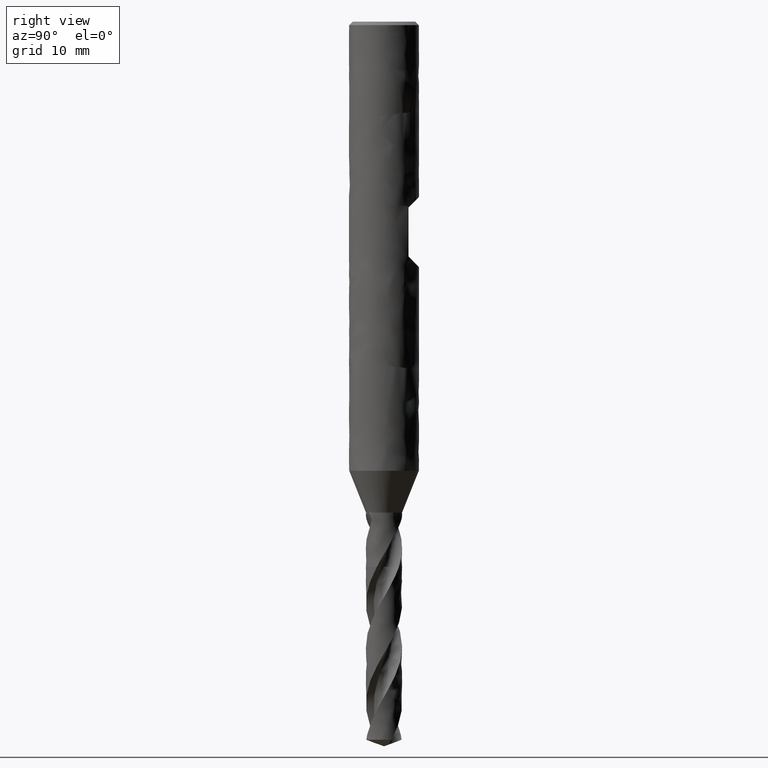
[diagram: clean part render]
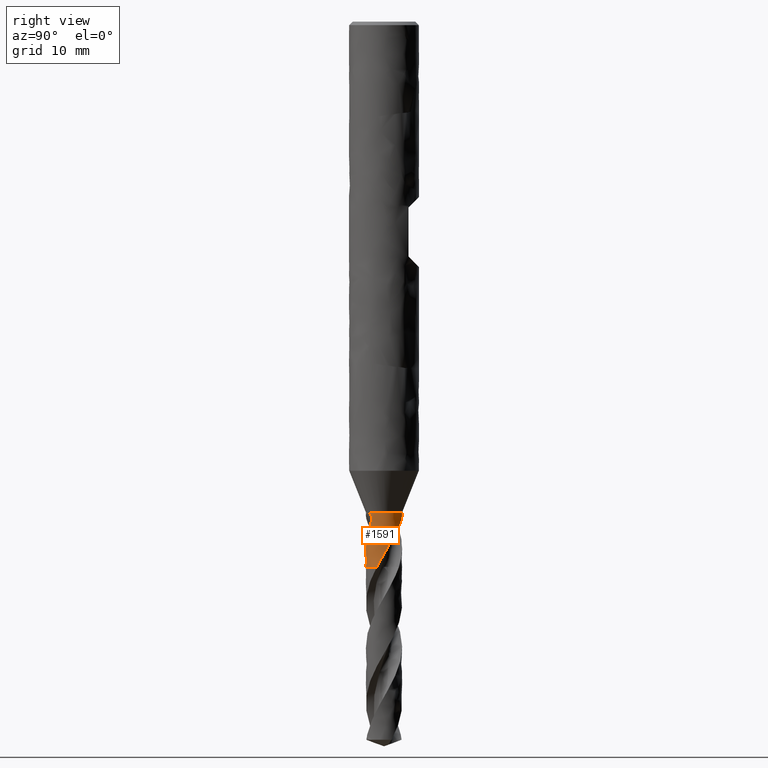
[diagram: same view with one face highlighted and labeled with its STEP entity id]
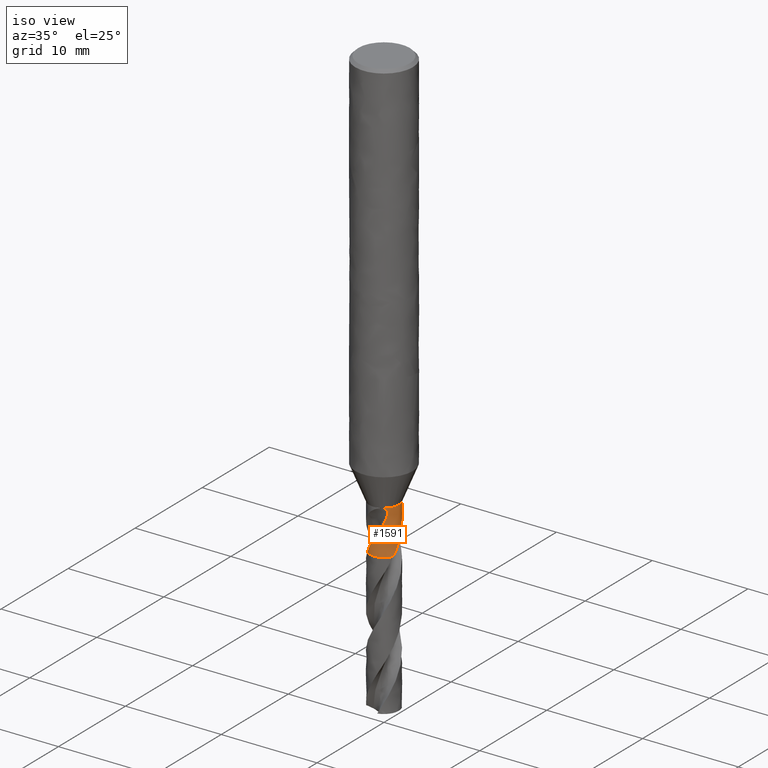
[diagram: same view with one face highlighted and labeled with its STEP entity id]
A machine part, right view. The second image highlights one B-rep face of the part: STEP entity #1591.
A second angle (iso view) of the same face is appended — the face is thin or edge-on in the first view.
In plain terms, the highlighted face is a freeform B-spline surface patch.
Its self-contained STEP definition (entity closure, byte-faithful):
#234 = VERTEX_POINT('', #235);
#235 = CARTESIAN_POINT('', (0.828880409114039, -1.30975465923467, -42.));
#248 = EDGE_CURVE('', #249, #234, #251, .T.);
#249 = VERTEX_POINT('', #250);
#250 = CARTESIAN_POINT('', (-0.627881422364551, 1.41713264003391, -42.));
#251 = CIRCLE('', #252, 1.55);
#252 = AXIS2_PLACEMENT_3D('', #253, #254, #255);
#253 = CARTESIAN_POINT('', (1.57474777179495E-31, 2.57175827820944E-15, -42.));
#254 = DIRECTION('', (3.74939945665464E-33, 6.12323399573677E-17, -1.));
#255 = DIRECTION('', (-1., 6.12323399573677E-17, 0.));
#663 = VERTEX_POINT('', #664);
#664 = CARTESIAN_POINT('', (1.42358137269787, -0.613119951810125, -46.65));
#673 = VERTEX_POINT('', #674);
#674 = CARTESIAN_POINT('', (0.688109863352139, 1.3888861781865, -42.9118066929105));
#694 = EDGE_CURVE('', #673, #663, #695, .T.);
#695 = B_SPLINE_CURVE_WITH_KNOTS('', 3, (#696, #697, #698, #699, #700, #701, #702, #703, #704, #705, #706, #707, #708, #709, #710, #711, #712, #713, #714, #715, #716, #717, #718, #719, #720, #721, #722, #723, #724, #725, #726, #727, #728, #729, #730, #731, #732, #733, #734, #735, #736, #737, #738, #739, #740, #741, #742, #743, #744, #745, #746, #747, #748, #749, #750, #751, #752, #753, #754, #755, #756, #757, #758, #759, #760, #761, #762, #763, #764, #765, #766, #767, #768, #769, #770, #771, #772, #773, #774, #775, #776, #777, #778, #779, #780, #781, #782, #783, #784, #785, #786, #787, #788, #789), .UNSPECIFIED., .F., .U., (4, 3, 3, 3, 3, 3, 3, 3, 3, 3, 3, 3, 3, 3, 3, 3, 3, 3, 3, 3, 3, 3, 3, 3, 3, 3, 3, 3, 3, 3, 3, 4), (0., 0.196307710938132, 0.392650529387996, 0.523731264748118, 0.654831555741321, 0.785953488166767, 0.917100515647358, 1.04827268029786, 1.17947527470515, 1.31071016461585, 1.44197240478924, 1.6388612717256, 1.72640256478545, 1.92344223032239, 2.01101714690096, 2.09858427305577, 2.18612234798457, 2.2736513195436, 2.36119224107981, 2.55806800019282, 2.68932176729786, 2.98419434913128, 3.11542578257224, 3.15433742898193, 3.193269035227, 3.32476015690542, 3.4562462548904, 3.65356726416794, 3.85085193143608, 4.04811085533864, 4.34408625653731, 4.42457904541132), .UNSPECIFIED.);
#696 = CARTESIAN_POINT('', (0.688109863352139, 1.3888861781865, -42.9118066929105));
#697 = CARTESIAN_POINT('', (0.725914878409177, 1.37015605893448, -42.961824899149));
#698 = CARTESIAN_POINT('', (0.7626199701549, 1.35004646359854, -43.0121879527074));
#699 = CARTESIAN_POINT('', (0.798117153549895, 1.32872457989217, -43.0628553458928));
#700 = CARTESIAN_POINT('', (0.833620685232364, 1.30739888299742, -43.1135318003938));
#701 = CARTESIAN_POINT('', (0.867937485532786, 1.28484771525259, -43.1645517061885));
#702 = CARTESIAN_POINT('', (0.9009816137607, 1.26124229696965, -43.2158767387565));
#703 = CARTESIAN_POINT('', (0.923042255762512, 1.24548304684052, -43.2501419238267));
#704 = CARTESIAN_POINT('', (0.944545249827618, 1.22924761472716, -43.2845549007541));
#705 = CARTESIAN_POINT('', (0.965470177926544, 1.21258704245695, -43.3191048864813));
#706 = CARTESIAN_POINT('', (0.986398227767311, 1.19592398463433, -43.3536600266412));
#707 = CARTESIAN_POINT('', (1.00675388992414, 1.17883095094532, -43.3883618632151));
#708 = CARTESIAN_POINT('', (1.02651811307358, 1.16136151285113, -43.4232028260833));
#709 = CARTESIAN_POINT('', (1.04628559880996, 1.14388919098255, -43.4580495403372));
#710 = CARTESIAN_POINT('', (1.06546709972157, 1.12603548871378, -43.4930443911303));
#711 = CARTESIAN_POINT('', (1.08405125760561, 1.10785056342618, -43.5281765215259));
#712 = CARTESIAN_POINT('', (1.10263897225897, 1.08966215777725, -43.5633153757604));
#713 = CARTESIAN_POINT('', (1.12063388384156, 1.07113769837624, -43.5986004362875));
#714 = CARTESIAN_POINT('', (1.13802635218483, 1.05232885626733, -43.634023448814));
#715 = CARTESIAN_POINT('', (1.15542215417157, 1.03351640903622, -43.6694532509284));
#716 = CARTESIAN_POINT('', (1.17221888215611, 1.01441558894512, -43.7050302967342));
#717 = CARTESIAN_POINT('', (1.1884103593105, 0.995078297363333, -43.7407472142565));
#718 = CARTESIAN_POINT('', (1.20460559261784, 0.97573651985207, -43.7764724175086));
#719 = CARTESIAN_POINT('', (1.22020008503502, 0.956152585715105, -43.8123446809472));
#720 = CARTESIAN_POINT('', (1.23519393300342, 0.936373829125725, -43.8483539213926));
#721 = CARTESIAN_POINT('', (1.25019147170576, 0.916590203997702, -43.8843720255084));
#722 = CARTESIAN_POINT('', (1.26459139481753, 0.896607197413098, -43.9205349635415));
#723 = CARTESIAN_POINT('', (1.27839461590825, 0.876474304253611, -43.9568359210355));
#724 = CARTESIAN_POINT('', (1.29220071368614, 0.856337215259334, -43.9931444439012));
#725 = CARTESIAN_POINT('', (1.30541224247744, 0.836046696868505, -44.0295991698362));
#726 = CARTESIAN_POINT('', (1.31803295197253, 0.815652583833749, -44.0661944887591));
#727 = CARTESIAN_POINT('', (1.33696358418738, 0.785062112405858, -44.1210862144252));
#728 = CARTESIAN_POINT('', (1.35457118549308, 0.754227513388256, -44.176314292574));
#729 = CARTESIAN_POINT('', (1.37088550337813, 0.723306944960235, -44.2318571481439));
#730 = CARTESIAN_POINT('', (1.37813922221591, 0.709558953088203, -44.2565527719874));
#731 = CARTESIAN_POINT('', (1.3851383005562, 0.69579245932408, -44.2813142362066));
#732 = CARTESIAN_POINT('', (1.39188726365057, 0.682018947894663, -44.3061384065767));
#733 = CARTESIAN_POINT('', (1.40707796262651, 0.651017257258608, -44.362013137872));
#734 = CARTESIAN_POINT('', (1.42100982403972, 0.619960949035784, -44.4182138075553));
#735 = CARTESIAN_POINT('', (1.43372984388197, 0.588998077044549, -44.4747235359944));
#736 = CARTESIAN_POINT('', (1.43938329783769, 0.575236528453426, -44.4998394675529));
#737 = CARTESIAN_POINT('', (1.44479763687934, 0.561493029343534, -44.5250203472092));
#738 = CARTESIAN_POINT('', (1.44997525077408, 0.547788072289502, -44.5502694708734));
#739 = CARTESIAN_POINT('', (1.45515240408253, 0.534084334390762, -44.575516348445));
#740 = CARTESIAN_POINT('', (1.46009221637526, 0.520421291558529, -44.6008351490694));
#741 = CARTESIAN_POINT('', (1.46480333290626, 0.506804889387146, -44.6262201672658));
#742 = CARTESIAN_POINT('', (1.4695128864796, 0.493193004586543, -44.6515967637412));
#743 = CARTESIAN_POINT('', (1.47399443441375, 0.479626840829052, -44.6770411520179));
#744 = CARTESIAN_POINT('', (1.4782629171662, 0.466088776663081, -44.7025349909793));
#745 = CARTESIAN_POINT('', (1.48253095602521, 0.452552120364533, -44.7280261787533));
#746 = CARTESIAN_POINT('', (1.48658643339481, 0.439042810316026, -44.753568211496));
#747 = CARTESIAN_POINT('', (1.49044756414112, 0.425518576029078, -44.7791307745499));
#748 = CARTESIAN_POINT('', (1.49430922203202, 0.411992495333013, -44.8046968275575));
#749 = CARTESIAN_POINT('', (1.49797716629944, 0.398449700461791, -44.8302839994479));
#750 = CARTESIAN_POINT('', (1.5014685503852, 0.384827483691276, -44.8558522566131));
#751 = CARTESIAN_POINT('', (1.50932052269916, 0.354191705355451, -44.9133541648667));
#752 = CARTESIAN_POINT('', (1.51626708216551, 0.323184328750323, -44.9707901707672));
#753 = CARTESIAN_POINT('', (1.52226406194159, 0.291911160665524, -45.028172215239));
#754 = CARTESIAN_POINT('', (1.52626214779233, 0.271061863936804, -45.0664278620237));
#755 = CARTESIAN_POINT('', (1.52983946782491, 0.250090630312868, -45.1046635803808));
#756 = CARTESIAN_POINT('', (1.53298806248788, 0.22901441061571, -45.1428742031237));
#757 = CARTESIAN_POINT('', (1.54006164412973, 0.181664917687133, -45.2287175677004));
#758 = CARTESIAN_POINT('', (1.54497357003309, 0.133759140346707, -45.3144623053737));
#759 = CARTESIAN_POINT('', (1.54763936477845, 0.0855125522270569, -45.4000558422376));
#760 = CARTESIAN_POINT('', (1.54882576218278, 0.0640406714634729, -45.4381487787395));
#761 = CARTESIAN_POINT('', (1.54956770045093, 0.0424980725993128, -45.4762183951329));
#762 = CARTESIAN_POINT('', (1.54985895686775, 0.0209096584576321, -45.5142627975886));
#763 = CARTESIAN_POINT('', (1.54994531778303, 0.0145084425629281, -45.5255434054232));
#764 = CARTESIAN_POINT('', (1.54999206876865, 0.00810308191162524, -45.5368220352718));
#765 = CARTESIAN_POINT('', (1.54999907403801, 0.00169424948084738, -45.5480986462014));
#766 = CARTESIAN_POINT('', (1.55000608290074, -0.00471787037804203, -45.5593810414994));
#767 = CARTESIAN_POINT('', (1.54997330531164, -0.011133526359033, -45.5706615229412));
#768 = CARTESIAN_POINT('', (1.54990061808078, -0.0175520389927566, -45.5819400505936));
#769 = CARTESIAN_POINT('', (1.5496551176651, -0.0392305030253665, -45.6200331681126));
#770 = CARTESIAN_POINT('', (1.54895418078763, -0.0609431089587205, -45.6581066904523));
#771 = CARTESIAN_POINT('', (1.54779416016179, -0.0826634004204427, -45.6961590880975));
#772 = CARTESIAN_POINT('', (1.54663418385519, -0.104382862046017, -45.7342100319291));
#773 = CARTESIAN_POINT('', (1.54501498030839, -0.126113158253275, -45.7722435914613));
#774 = CARTESIAN_POINT('', (1.5429346012644, -0.147826980693866, -45.810258546714));
#775 = CARTESIAN_POINT('', (1.53981257924891, -0.180412884640459, -45.8673075386079));
#776 = CARTESIAN_POINT('', (1.5356491527488, -0.212971693211585, -45.9243244761203));
#777 = CARTESIAN_POINT('', (1.5304586350026, -0.245349478389478, -45.9813412559846));
#778 = CARTESIAN_POINT('', (1.52526907323086, -0.277721300321097, -46.0383475346642));
#779 = CARTESIAN_POINT('', (1.51905591903555, -0.309905096839805, -46.095376839728));
#780 = CARTESIAN_POINT('', (1.51183485834946, -0.341841134270699, -46.1524077787983));
#781 = CARTESIAN_POINT('', (1.50461473992821, -0.373773004418356, -46.2094312759911));
#782 = CARTESIAN_POINT('', (1.49638485266574, -0.405467684235788, -46.2664691646919));
#783 = CARTESIAN_POINT('', (1.48715790855641, -0.436876819044156, -46.3234935754845));
#784 = CARTESIAN_POINT('', (1.47331342217997, -0.484004376532009, -46.4090553464225));
#785 = CARTESIAN_POINT('', (1.45721693653461, -0.53050173451423, -46.4946316660526));
#786 = CARTESIAN_POINT('', (1.43895794688042, -0.576107652361715, -46.5801898490508));
#787 = CARTESIAN_POINT('', (1.43399227408012, -0.58851053281001, -46.6034580555728));
#788 = CARTESIAN_POINT('', (1.42886553878241, -0.600850834835569, -46.6267310261941));
#789 = CARTESIAN_POINT('', (1.42358137269787, -0.613119951810125, -46.65));
#973 = EDGE_CURVE('', #673, #249, #974, .T.);
#974 = B_SPLINE_CURVE_WITH_KNOTS('', 3, (#975, #976, #977, #978, #979, #980, #981, #982, #983, #984, #985, #986, #987, #988, #989, #990, #991, #992, #993, #994, #995, #996, #997, #998, #999, #1000, #1001, #1002, #1003, #1004, #1005, #1006, #1007, #1008, #1009, #1010, #1011, #1012, #1013, #1014, #1015, #1016, #1017), .UNSPECIFIED., .F., .U., (4, 3, 3, 3, 3, 3, 3, 3, 3, 3, 3, 3, 3, 3, 4), (0., 0.199512024103179, 0.399145997554944, 0.598825837173971, 0.798452214318455, 0.930861007897549, 0.956845436201182, 0.974175246523715, 1.10783884449987, 1.24150972349648, 1.37515131563216, 1.4636764541842, 1.55214562278959, 1.64052794465364, 1.66696989648434), .UNSPECIFIED.);
#975 = CARTESIAN_POINT('', (0.688109863352139, 1.3888861781865, -42.9118066929105));
#976 = CARTESIAN_POINT('', (0.649687760423854, 1.40792202749577, -42.8609720439761));
#977 = CARTESIAN_POINT('', (0.609166384223053, 1.42600873895645, -42.8112947280029));
#978 = CARTESIAN_POINT('', (0.566669538144555, 1.44270081255229, -42.7629400401527));
#979 = CARTESIAN_POINT('', (0.52414671637502, 1.45940308897932, -42.7145557960754));
#980 = CARTESIAN_POINT('', (0.479575220984548, 1.47473600166537, -42.6674089881736));
#981 = CARTESIAN_POINT('', (0.433142044427215, 1.48824996870466, -42.6216976734509));
#982 = CARTESIAN_POINT('', (0.386698199786661, 1.5017670405956, -42.5759758564938));
#983 = CARTESIAN_POINT('', (0.338295733037174, 1.51349143742434, -42.5316001825323));
#984 = CARTESIAN_POINT('', (0.288191434533436, 1.52297265144899, -42.4888229416742));
#985 = CARTESIAN_POINT('', (0.238100551003329, 1.53245132696418, -42.4460571540362));
#986 = CARTESIAN_POINT('', (0.186191680448451, 1.53970938436536, -42.4047818298425));
#987 = CARTESIAN_POINT('', (0.132794609387921, 1.54430100424675, -42.3653416938936));
#988 = CARTESIAN_POINT('', (0.0973772368897723, 1.5473465479157, -42.3391817199748));
#989 = CARTESIAN_POINT('', (0.0612518946608237, 1.54922454214678, -42.3137901101189));
#990 = CARTESIAN_POINT('', (0.024534886059553, 1.54980580698553, -42.2893047418982));
#991 = CARTESIAN_POINT('', (0.0173293942509318, 1.54991987670944, -42.2844996358489));
#992 = CARTESIAN_POINT('', (0.0101000028696625, 1.54998406000565, -42.2797287298267));
#993 = CARTESIAN_POINT('', (0.00284768241107897, 1.54999738409615, -42.2749932426621));
#994 = CARTESIAN_POINT('', (-0.00198911201352287, 1.55000627033979, -42.2718350013727));
#995 = CARTESIAN_POINT('', (-0.00683626033863964, 1.54999253525196, -42.2686924134842));
#996 = CARTESIAN_POINT('', (-0.0116934662623758, 1.54995589061327, -42.2655658570562));
#997 = CARTESIAN_POINT('', (-0.0491567510759168, 1.54967325311391, -42.2414509490642));
#998 = CARTESIAN_POINT('', (-0.0872563126577124, 1.54802615196217, -42.2182632633681));
#999 = CARTESIAN_POINT('', (-0.125840676796575, 1.54488320725658, -42.1962070823066));
#1000 = CARTESIAN_POINT('', (-0.164427142730904, 1.54174009134623, -42.1741496997849));
#1001 = CARTESIAN_POINT('', (-0.203572923630975, 1.537094352888, -42.1531803093576));
#1002 = CARTESIAN_POINT('', (-0.243090090655497, 1.53081912969009, -42.1335757757286));
#1003 = CARTESIAN_POINT('', (-0.282598599595449, 1.52454528137345, -42.1139755373901));
#1004 = CARTESIAN_POINT('', (-0.322573769802558, 1.5166263862717, -42.0956904921732));
#1005 = CARTESIAN_POINT('', (-0.362770713871861, 1.5069497035923, -42.0791067563427));
#1006 = CARTESIAN_POINT('', (-0.389397454740759, 1.50053980034863, -42.0681215721));
#1007 = CARTESIAN_POINT('', (-0.416164007889958, 1.49334871956095, -42.0578666085117));
#1008 = CARTESIAN_POINT('', (-0.442976999788764, 1.48535227392634, -42.048492986779));
#1009 = CARTESIAN_POINT('', (-0.469773039195309, 1.47736088403796, -42.0391252915111));
#1010 = CARTESIAN_POINT('', (-0.496660495276984, 1.46855117807641, -42.0306217144598));
#1011 = CARTESIAN_POINT('', (-0.523518029730813, 1.45891359324217, -42.0231763429793));
#1012 = CARTESIAN_POINT('', (-0.550349199187838, 1.44928546925006, -42.0157382803303));
#1013 = CARTESIAN_POINT('', (-0.577208016946002, 1.43880948994966, -42.0093401567046));
#1014 = CARTESIAN_POINT('', (-0.603929551241862, 1.4275044998657, -42.0042319274531));
#1015 = CARTESIAN_POINT('', (-0.611924017870382, 1.42412230762474, -42.0027036631016));
#1016 = CARTESIAN_POINT('', (-0.619909811836529, 1.42066457911673, -42.0012904049218));
#1017 = CARTESIAN_POINT('', (-0.627881422364551, 1.41713264003391, -42.));
#1170 = EDGE_CURVE('', #1171, #1173, #1175, .T.);
#1171 = VERTEX_POINT('', #1172);
#1172 = CARTESIAN_POINT('', (0.388448596517922, -1.50053580026044, -44.3085021906909));
#1173 = VERTEX_POINT('', #1174);
#1174 = CARTESIAN_POINT('', (-0.0220287822873654, -1.54984345427238, -45.0346399438167));
#1175 = B_SPLINE_CURVE_WITH_KNOTS('', 3, (#1176, #1177, #1178, #1179, #1180, #1181, #1182, #1183, #1184, #1185, #1186, #1187, #1188, #1189, #1190, #1191, #1192, #1193, #1194, #1195, #1196, #1197, #1198, #1199, #1200, #1201, #1202, #1203, #1204, #1205, #1206), .UNSPECIFIED., .F., .U., (4, 3, 3, 3, 3, 3, 3, 3, 3, 3, 4), (0., 0.131264561227884, 0.262585397836051, 0.320959091994737, 0.408497116577098, 0.496014958535333, 0.583532936850336, 0.64189940386984, 0.773166079629821, 0.812085985535779, 0.836531589989056), .UNSPECIFIED.);
#1176 = CARTESIAN_POINT('', (0.388448596517922, -1.50053580026044, -44.3085021906909));
#1177 = CARTESIAN_POINT('', (0.365245776018878, -1.50654239007759, -44.3451087095871));
#1178 = CARTESIAN_POINT('', (0.342269985999335, -1.5119154075652, -44.3819700204049));
#1179 = CARTESIAN_POINT('', (0.319595882078315, -1.51669326897673, -44.419085304019));
#1180 = CARTESIAN_POINT('', (0.296912057378063, -1.52147317873982, -44.4562164995949));
#1181 = CARTESIAN_POINT('', (0.274523294112293, -1.52565848158655, -44.4936117303057));
#1182 = CARTESIAN_POINT('', (0.252531175537293, -1.52929003311441, -44.5312851649694));
#1183 = CARTESIAN_POINT('', (0.242755413847402, -1.53090430152516, -44.5480314606051));
#1184 = CARTESIAN_POINT('', (0.233059112696367, -1.53240914489766, -44.5648353275673));
#1185 = CARTESIAN_POINT('', (0.223447825033429, -1.53380933283372, -44.5816957077481));
#1186 = CARTESIAN_POINT('', (0.209034600929104, -1.53590907463923, -44.6069797744156));
#1187 = CARTESIAN_POINT('', (0.194808695590573, -1.53777444007374, -44.6323916546964));
#1188 = CARTESIAN_POINT('', (0.180740003990574, -1.53942620835086, -44.6579019967208));
#1189 = CARTESIAN_POINT('', (0.166674556045158, -1.54107759579899, -44.6834064571222));
#1190 = CARTESIAN_POINT('', (0.152765004717375, -1.54251587157647, -44.7090116501387));
#1191 = CARTESIAN_POINT('', (0.138951430237892, -1.54375921051012, -44.7346764251265));
#1192 = CARTESIAN_POINT('', (0.125137834236232, -1.54500255138096, -44.7603412401012));
#1193 = CARTESIAN_POINT('', (0.111419137017613, -1.54605127648669, -44.7860671434218));
#1194 = CARTESIAN_POINT('', (0.0977069707812185, -1.54691736943534, -44.8118017589973));
#1195 = CARTESIAN_POINT('', (0.0885622131689953, -1.54749497402009, -44.8289643879812));
#1196 = CARTESIAN_POINT('', (0.0794170980341032, -1.54799133352538, -44.8461297619382));
#1197 = CARTESIAN_POINT('', (0.0702480691626434, -1.54840731358997, -44.8632841177297));
#1198 = CARTESIAN_POINT('', (0.0496268460294764, -1.54934285625769, -44.9018644083408));
#1199 = CARTESIAN_POINT('', (0.0289099958815239, -1.54986977552415, -44.9404058393376));
#1200 = CARTESIAN_POINT('', (0.00812305100267659, -1.54997871470624, -44.9789083062987));
#1201 = CARTESIAN_POINT('', (0.00195982690887558, -1.55001101462312, -44.9903240931509));
#1202 = CARTESIAN_POINT('', (-0.00420976121776305, -1.55000658598397, -45.0017366099086));
#1203 = CARTESIAN_POINT('', (-0.0103852750466588, -1.54996520801668, -45.0131457238437));
#1204 = CARTESIAN_POINT('', (-0.0142641171158483, -1.54993921850315, -45.0203117916932));
#1205 = CARTESIAN_POINT('', (-0.0181453155933101, -1.54989865213258, -45.0274765466262));
#1206 = CARTESIAN_POINT('', (-0.0220287822873654, -1.54984345427238, -45.0346399438167));
#1236 = VERTEX_POINT('', #1237);
#1237 = CARTESIAN_POINT('', (-0.884158068900924, -1.27309249828808, -46.65));
#1244 = EDGE_CURVE('', #1173, #1236, #1245, .T.);
#1245 = B_SPLINE_CURVE_WITH_KNOTS('', 3, (#1246, #1247, #1248, #1249, #1250, #1251, #1252, #1253, #1254, #1255, #1256, #1257, #1258, #1259, #1260, #1261, #1262, #1263, #1264, #1265, #1266, #1267, #1268, #1269, #1270, #1271, #1272, #1273, #1274, #1275, #1276), .UNSPECIFIED., .F., .U., (4, 3, 3, 3, 3, 3, 3, 3, 3, 3, 4), (0., 0.131482555439471, 0.328759135326313, 0.526028240595018, 0.723272622894749, 0.81088783804958, 1.00812273333959, 1.13956858905504, 1.43545262745011, 1.73126161790311, 1.85836392341819), .UNSPECIFIED.);
#1246 = CARTESIAN_POINT('', (-0.022028782287369, -1.54984345427238, -45.0346399438167));
#1247 = CARTESIAN_POINT('', (-0.042916305272305, -1.54954656835458, -45.0731688241327));
#1248 = CARTESIAN_POINT('', (-0.0638846781035794, -1.54882616777286, -45.1116531388868));
#1249 = CARTESIAN_POINT('', (-0.084918416531868, -1.54767207848877, -45.1500862145087));
#1250 = CARTESIAN_POINT('', (-0.116477462258489, -1.54594048157776, -45.2077512461006));
#1251 = CARTESIAN_POINT('', (-0.148187633341881, -1.54323149922867, -45.2653130685903));
#1252 = CARTESIAN_POINT('', (-0.179956249809767, -1.53951802462834, -45.3227690759146));
#1253 = CARTESIAN_POINT('', (-0.211723662595608, -1.53580469072796, -45.3802229062865));
#1254 = CARTESIAN_POINT('', (-0.243557997000892, -1.53108590161456, -45.4375839137295));
#1255 = CARTESIAN_POINT('', (-0.27536317908301, -1.52534426265221, -45.4948496448688));
#1256 = CARTESIAN_POINT('', (-0.307164375145479, -1.51960334326711, -45.552108199117));
#1257 = CARTESIAN_POINT('', (-0.338942489081335, -1.51283870019827, -45.6092863655627));
#1258 = CARTESIAN_POINT('', (-0.370599687884531, -1.50504347822261, -45.6663816590575));
#1259 = CARTESIAN_POINT('', (-0.384661696911112, -1.50158086984505, -45.6917431743796));
#1260 = CARTESIAN_POINT('', (-0.398701315462021, -1.49791470406578, -45.7170901512845));
#1261 = CARTESIAN_POINT('', (-0.412709394445121, -1.49404516522652, -45.7424226720127));
#1262 = CARTESIAN_POINT('', (-0.444243666050381, -1.48533425712187, -45.7994499482047));
#1263 = CARTESIAN_POINT('', (-0.475627559805718, -1.47558782896042, -45.8564117765466));
#1264 = CARTESIAN_POINT('', (-0.506699943522939, -1.46483963874341, -45.9133449286879));
#1265 = CARTESIAN_POINT('', (-0.527407922508218, -1.45767658040938, -45.9512876410604));
#1266 = CARTESIAN_POINT('', (-0.54797593390391, -1.45006966554317, -45.9892257900629));
#1267 = CARTESIAN_POINT('', (-0.568351591590085, -1.44203899681562, -46.0271747051221));
#1268 = CARTESIAN_POINT('', (-0.614217106697624, -1.42396199711726, -46.112597544658));
#1269 = CARTESIAN_POINT('', (-0.659154344752141, -1.40372345052591, -46.198093508673));
#1270 = CARTESIAN_POINT('', (-0.703032617224813, -1.38139246382695, -46.2835540793849));
#1271 = CARTESIAN_POINT('', (-0.746899760425126, -1.35906714115301, -46.3689929739025));
#1272 = CARTESIAN_POINT('', (-0.789737268666741, -1.3346309415261, -46.4544411105722));
#1273 = CARTESIAN_POINT('', (-0.831297601305608, -1.30822180767006, -46.5398685498488));
#1274 = CARTESIAN_POINT('', (-0.849155118375269, -1.29687441151885, -46.5765747516098));
#1275 = CARTESIAN_POINT('', (-0.866783227301104, -1.28515926202835, -46.6132915860429));
#1276 = CARTESIAN_POINT('', (-0.884158068900924, -1.27309249828808, -46.65));
#1279 = EDGE_CURVE('', #1171, #234, #1280, .T.);
#1280 = B_SPLINE_CURVE_WITH_KNOTS('', 3, (#1281, #1282, #1283, #1284, #1285, #1286, #1287, #1288, #1289, #1290, #1291, #1292, #1293, #1294, #1295, #1296, #1297, #1298, #1299, #1300, #1301, #1302, #1303, #1304, #1305, #1306, #1307, #1308, #1309, #1310, #1311, #1312, #1313, #1314, #1315, #1316, #1317, #1318, #1319, #1320, #1321, #1322, #1323, #1324, #1325, #1326, #1327, #1328, #1329, #1330, #1331, #1332, #1333, #1334, #1335, #1336, #1337, #1338, #1339, #1340, #1341, #1342, #1343, #1344, #1345, #1346, #1347, #1348, #1349, #1350, #1351, #1352, #1353, #1354, #1355, #1356, #1357, #1358, #1359, #1360, #1361, #1362), .UNSPECIFIED., .F., .U., (4, 3, 3, 3, 3, 3, 3, 3, 3, 3, 3, 3, 3, 3, 3, 3, 3, 3, 3, 3, 3, 3, 3, 3, 3, 3, 3, 4), (0., 0.0876282715908606, 0.21908679773003, 0.35047039714388, 0.481760891676108, 0.612952187554942, 0.74404241155187, 0.875027210739274, 1.00590652439597, 1.13669058934308, 1.26739079679732, 1.39803265836738, 1.52864793648831, 1.65928540064771, 1.79002169874017, 1.92097227512344, 2.05233034935036, 2.14014692306906, 2.22832391364266, 2.28712810874313, 2.34607437574449, 2.40515957901007, 2.46435090927428, 2.52358029965862, 2.5827585295964, 2.64180623783917, 2.70067895301189, 2.71825534492389), .UNSPECIFIED.);
#1281 = CARTESIAN_POINT('', (0.388448596517921, -1.50053580026044, -44.3085021906909));
#1282 = CARTESIAN_POINT('', (0.403938101357193, -1.49652598162464, -44.2840647800918));
#1283 = CARTESIAN_POINT('', (0.419488507246114, -1.49224412770326, -44.2597090222849));
#1284 = CARTESIAN_POINT('', (0.435058129465179, -1.48769097059403, -44.2354181584316));
#1285 = CARTESIAN_POINT('', (0.458415426742687, -1.48086039740122, -44.1989773944769));
#1286 = CARTESIAN_POINT('', (0.481819978685984, -1.47341693876549, -44.1626769021142));
#1287 = CARTESIAN_POINT('', (0.505130881967404, -1.46538144934444, -44.1264528487543));
#1288 = CARTESIAN_POINT('', (0.528428498855781, -1.45735053986908, -44.0902494418277));
#1289 = CARTESIAN_POINT('', (0.551636836712614, -1.44872669241392, -44.0541153508339));
#1290 = CARTESIAN_POINT('', (0.574617001723601, -1.43955385495999, -44.0179804341759));
#1291 = CARTESIAN_POINT('', (0.597580881859212, -1.43038751782991, -43.9818711244974));
#1292 = CARTESIAN_POINT('', (0.620320899415739, -1.420671269376, -43.9457540784125));
#1293 = CARTESIAN_POINT('', (0.642701184569789, -1.41047339122459, -43.9095550467907));
#1294 = CARTESIAN_POINT('', (0.665064559937965, -1.4002832182447, -43.8733833659319));
#1295 = CARTESIAN_POINT('', (0.687072839440869, -1.38961043345274, -43.8371226131705));
#1296 = CARTESIAN_POINT('', (0.708606957774329, -1.37854132306386, -43.8007068580338));
#1297 = CARTESIAN_POINT('', (0.730124485877084, -1.36748074049545, -43.7643191581799));
#1298 = CARTESIAN_POINT('', (0.751173448181178, -1.35602206627749, -43.7277691202528));
#1299 = CARTESIAN_POINT('', (0.771648983878611, -1.34426851695606, -43.6909994082698));
#1300 = CARTESIAN_POINT('', (0.792108052829821, -1.33252442002292, -43.6542592670645));
#1301 = CARTESIAN_POINT('', (0.811998762654927, -1.32048347771325, -43.6172900608829));
#1302 = CARTESIAN_POINT('', (0.831220142889807, -1.30827102469411, -43.5800378149905));
#1303 = CARTESIAN_POINT('', (0.850426043637696, -1.29606840668709, -43.5428155693191));
#1304 = CARTESIAN_POINT('', (0.868969661893513, -1.28369086404965, -43.5052999354403));
#1305 = CARTESIAN_POINT('', (0.886760373952519, -1.27128125888314, -43.4674481409436));
#1306 = CARTESIAN_POINT('', (0.904538138645595, -1.25888068492901, -43.429623893463));
#1307 = CARTESIAN_POINT('', (0.921571223276896, -1.24644312281027, -43.3914506074079));
#1308 = CARTESIAN_POINT('', (0.937771370777035, -1.23413324084191, -43.3528952073161));
#1309 = CARTESIAN_POINT('', (0.953961130897383, -1.22183125185225, -43.3143645285784));
#1310 = CARTESIAN_POINT('', (0.969326202385631, -1.20965142212198, -43.2754342511694));
#1311 = CARTESIAN_POINT('', (0.983780135882558, -1.19777988138175, -43.2360869412643));
#1312 = CARTESIAN_POINT('', (0.998227616998529, -1.18591364021645, -43.1967571963933));
#1313 = CARTESIAN_POINT('', (1.01177404018386, -1.17434790694306, -43.1569876601274));
#1314 = CARTESIAN_POINT('', (1.02432613189204, -1.1632953088202, -43.1167800577356));
#1315 = CARTESIAN_POINT('', (1.03687566945802, -1.15224495971751, -43.0765806369232));
#1316 = CARTESIAN_POINT('', (1.04844094463063, -1.14169917415287, -43.0359110374822));
#1317 = CARTESIAN_POINT('', (1.05890739109643, -1.13190774230118, -42.9947992885199));
#1318 = CARTESIAN_POINT('', (1.06937561537098, -1.12211464729731, -42.9536805564017));
#1319 = CARTESIAN_POINT('', (1.07875738220319, -1.11306470334575, -42.912074894697));
#1320 = CARTESIAN_POINT('', (1.08690247260456, -1.10505339918309, -42.8700544821789));
#1321 = CARTESIAN_POINT('', (1.09505372518402, -1.09703603405848, -42.8280022790664));
#1322 = CARTESIAN_POINT('', (1.10198050644264, -1.09004604681466, -42.7854685598156));
#1323 = CARTESIAN_POINT('', (1.10746370532549, -1.08444646773676, -42.7426002954125));
#1324 = CARTESIAN_POINT('', (1.11295589123414, -1.07883771088459, -42.6996617694328));
#1325 = CARTESIAN_POINT('', (1.11701577989657, -1.07461003829689, -42.65628541762));
#1326 = CARTESIAN_POINT('', (1.11930870175379, -1.0722164101422, -42.6127612596569));
#1327 = CARTESIAN_POINT('', (1.12160875882751, -1.06981533338867, -42.5691016612779));
#1328 = CARTESIAN_POINT('', (1.12214230406973, -1.06925354799752, -42.5251240637113));
#1329 = CARTESIAN_POINT('', (1.12038045023122, -1.07109646938998, -42.4814123321678));
#1330 = CARTESIAN_POINT('', (1.11920260129881, -1.07232851426634, -42.452189808025));
#1331 = CARTESIAN_POINT('', (1.11699157942681, -1.07464160019225, -42.422999518276));
#1332 = CARTESIAN_POINT('', (1.11353038154703, -1.07821616078212, -42.3941533087193));
#1333 = CARTESIAN_POINT('', (1.11005497821602, -1.08180539208653, -42.3651887085253));
#1334 = CARTESIAN_POINT('', (1.10530271008201, -1.08668552506483, -42.3364534594942));
#1335 = CARTESIAN_POINT('', (1.09901480373138, -1.09300798770149, -42.3084463572878));
#1336 = CARTESIAN_POINT('', (1.09482147314241, -1.09722436347008, -42.2897687511273));
#1337 = CARTESIAN_POINT('', (1.08993155219328, -1.10209434652859, -42.2713614912313));
#1338 = CARTESIAN_POINT('', (1.08427141069704, -1.10763509692726, -42.2534316919798));
#1339 = CARTESIAN_POINT('', (1.078597594206, -1.11318923386986, -42.235458574039));
#1340 = CARTESIAN_POINT('', (1.07212913925488, -1.11943755010663, -42.2179064211944));
#1341 = CARTESIAN_POINT('', (1.06481455150629, -1.12635250738854, -42.2010317724241));
#1342 = CARTESIAN_POINT('', (1.05748272328519, -1.13328376321455, -42.1841173501315));
#1343 = CARTESIAN_POINT('', (1.04926791394569, -1.14091520751659, -42.1678155532982));
#1344 = CARTESIAN_POINT('', (1.04016765963976, -1.14915240061514, -42.1524132899806));
#1345 = CARTESIAN_POINT('', (1.03105105974097, -1.15740438910293, -42.1369833615981));
#1346 = CARTESIAN_POINT('', (1.02099896007127, -1.16630538077768, -42.1223834417779));
#1347 = CARTESIAN_POINT('', (1.01008286084551, -1.17568389213519, -42.1088863050439));
#1348 = CARTESIAN_POINT('', (0.999159742550464, -1.18506843389052, -42.0953804896294));
#1349 = CARTESIAN_POINT('', (0.987312109824144, -1.19498047138368, -42.082908396504));
#1350 = CARTESIAN_POINT('', (0.974689832766419, -1.20518866983629, -42.0716717602864));
#1351 = CARTESIAN_POINT('', (0.962078458426528, -1.21538805077469, -42.0604448299146));
#1352 = CARTESIAN_POINT('', (0.948626738205428, -1.22593604921205, -42.0503902775815));
#1353 = CARTESIAN_POINT('', (0.934537442837527, -1.23658391059187, -42.0416020522821));
#1354 = CARTESIAN_POINT('', (0.920479222388816, -1.24720828737411, -42.0328332100238));
#1355 = CARTESIAN_POINT('', (0.905718066558275, -1.25798325767525, -42.0252788964135));
#1356 = CARTESIAN_POINT('', (0.890468928311068, -1.26868636301985, -42.0189298132162));
#1357 = CARTESIAN_POINT('', (0.875264982224518, -1.27935774877161, -42.0125995460846));
#1358 = CARTESIAN_POINT('', (0.859512538149361, -1.2900026030266, -42.0074371750736));
#1359 = CARTESIAN_POINT('', (0.843406402694066, -1.30044824575784, -42.003363886347));
#1360 = CARTESIAN_POINT('', (0.838597931603178, -1.3035667822459, -42.0021478099555));
#1361 = CARTESIAN_POINT('', (0.833754389638478, -1.30667015257336, -42.0010274426276));
#1362 = CARTESIAN_POINT('', (0.828880409114045, -1.30975465923468, -42.));
#1591 = ADVANCED_FACE('', (#1592), #1607, .T.);
#1592 = FACE_OUTER_BOUND('', #1593, .T.);
#1593 = EDGE_LOOP('', (#1594, #1601, #1602, #1603, #1604, #1605, #1606));
#1594 = ORIENTED_EDGE('', *, *, #1595, .F.);
#1595 = EDGE_CURVE('', #663, #1236, #1596, .T.);
#1596 = CIRCLE('', #1597, 1.55);
#1597 = AXIS2_PLACEMENT_3D('', #1598, #1599, #1600);
#1598 = CARTESIAN_POINT('', (1.74909484652939E-31, 2.8564886590112E-15, -46.65));
#1599 = DIRECTION('', (3.74939945665464E-33, 6.12323399573677E-17, -1.));
#1600 = DIRECTION('', (-1., 6.12323399573677E-17, 0.));
#1601 = ORIENTED_EDGE('', *, *, #694, .F.);
#1602 = ORIENTED_EDGE('', *, *, #973, .T.);
#1603 = ORIENTED_EDGE('', *, *, #248, .T.);
#1604 = ORIENTED_EDGE('', *, *, #1279, .F.);
#1605 = ORIENTED_EDGE('', *, *, #1170, .T.);
#1606 = ORIENTED_EDGE('', *, *, #1244, .T.);
#1607 = (
   BOUNDED_SURFACE ()
   B_SPLINE_SURFACE (2, 1, ((#1608, #1609), (#1610, #1611), (#1612, #1613), (#1614, #1615), (#1616, #1617), (#1618, #1619), (#1620, #1621), (#1622, #1623), (#1624, #1625)), .UNSPECIFIED., .T., .F., .U.)
   B_SPLINE_SURFACE_WITH_KNOTS ((3, 2, 2, 2, 3), (2, 2), (0., 2.43473430653209, 4.86946861306418, 7.30420291959627, 9.73893722612836), (0., 0.239248652579871), .UNSPECIFIED.)
   GEOMETRIC_REPRESENTATION_ITEM ()
   RATIONAL_B_SPLINE_SURFACE (((1., 1.), (0.707106781186548, 0.707106781186548), (1., 1.), (0.707106781186548, 0.707106781186548), (1., 1.), (0.707106781186548, 0.707106781186548), (1., 1.), (0.707106781186548, 0.707106781186548), (1., 1.)))
   REPRESENTATION_ITEM ('')
   SURFACE ()
);
#1608 = CARTESIAN_POINT('', (-1.55, 2.66666840514336E-15, -42.));
#1609 = CARTESIAN_POINT('', (-1.55, 2.95139878594512E-15, -46.65));
#1610 = CARTESIAN_POINT('', (-1.55, 1.55, -42.));
#1611 = CARTESIAN_POINT('', (-1.55, 1.55, -46.65));
#1612 = CARTESIAN_POINT('', (1.60237371373018E-31, 1.55, -42.));
#1613 = CARTESIAN_POINT('', (1.72563323017096E-31, 1.55, -46.65));
#1614 = CARTESIAN_POINT('', (1.55, 1.55, -42.));
#1615 = CARTESIAN_POINT('', (1.55, 1.55, -46.65));
#1616 = CARTESIAN_POINT('', (1.55, 2.66666840514336E-15, -42.));
#1617 = CARTESIAN_POINT('', (1.55, 2.95139878594512E-15, -46.65));
#1618 = CARTESIAN_POINT('', (1.55, -1.55, -42.));
#1619 = CARTESIAN_POINT('', (1.55, -1.55, -46.65));
#1620 = CARTESIAN_POINT('', (1.8982025386784E-16, -1.55, -42.));
#1621 = CARTESIAN_POINT('', (1.8982025386784E-16, -1.55, -46.65));
#1622 = CARTESIAN_POINT('', (-1.55, -1.55, -42.));
#1623 = CARTESIAN_POINT('', (-1.55, -1.55, -46.65));
#1624 = CARTESIAN_POINT('', (-1.55, 2.66666840514336E-15, -42.));
#1625 = CARTESIAN_POINT('', (-1.55, 2.95139878594512E-15, -46.65));